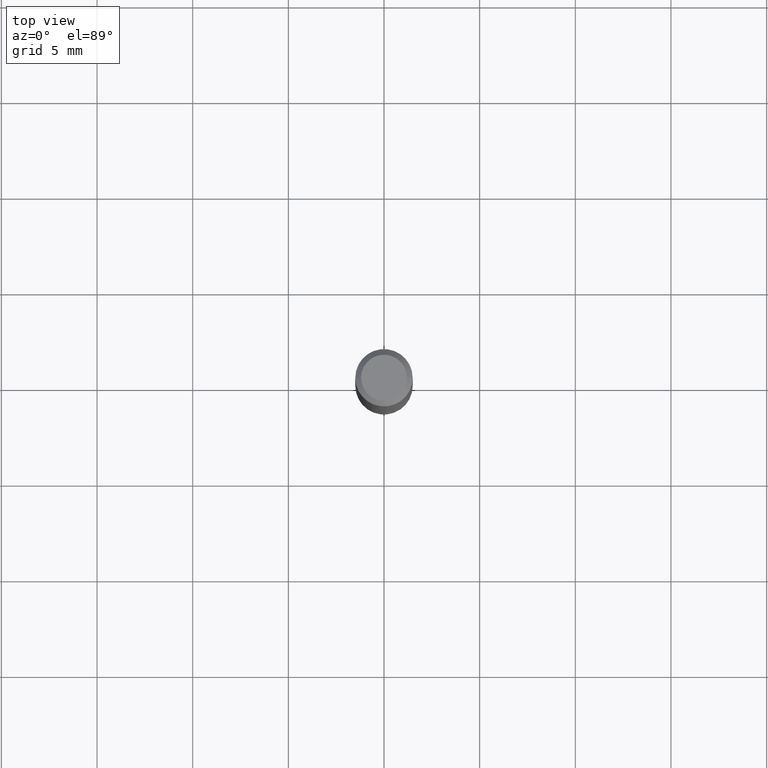
[diagram: clean part render]
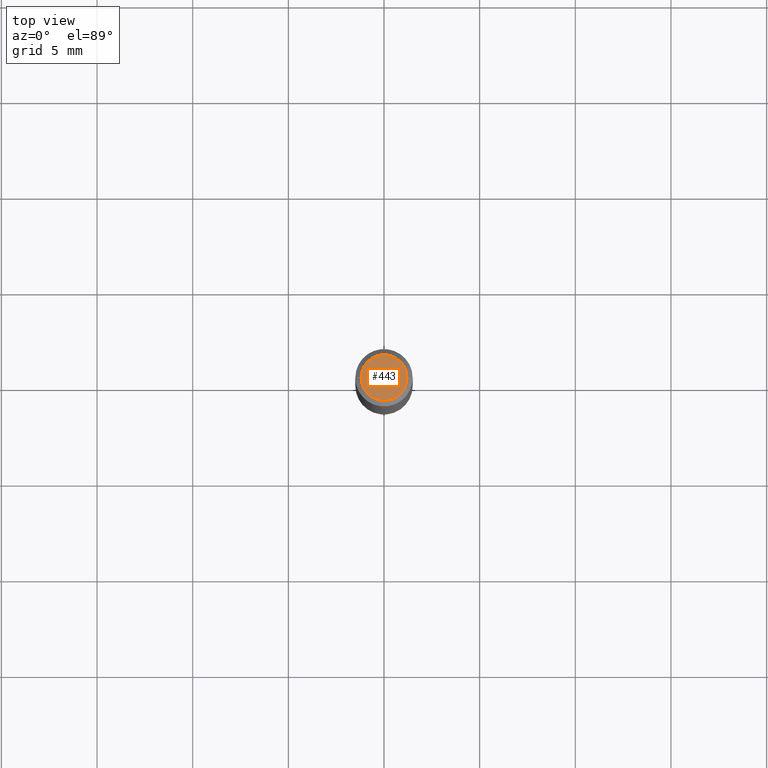
[diagram: same view with one face highlighted and labeled with its STEP entity id]
A machine part, top view. The second image highlights one B-rep face of the part: STEP entity #443.
In plain terms, the highlighted planar face has unit normal (0, -0, -1).
Its self-contained STEP definition (entity closure, byte-faithful):
#31 = VERTEX_POINT ( 'NONE', #435 ) ;
#47 = DIRECTION ( 'NONE',  ( 1.000000000000000000, -6.982962677686266711E-15, 4.876185090822587894E-29 ) ) ;
#56 = CIRCLE ( 'NONE', #98, 0.04724000000000000421 ) ;
#57 = CARTESIAN_POINT ( 'NONE',  ( 8.265746106709734507E-48, -1.180129479067563789E-33, -3.380025165646692144E-19 ) ) ;
#59 = DIRECTION ( 'NONE',  ( -2.445468806185136597E-29, 3.491481338843145583E-15, 1.000000000000000000 ) ) ;
#71 = CIRCLE ( 'NONE', #470, 0.04724000000000000421 ) ;
#78 = ORIENTED_EDGE ( 'NONE', *, *, #157, .T. ) ;
#98 = AXIS2_PLACEMENT_3D ( 'NONE', #402, #59, #47 ) ;
#113 = DIRECTION ( 'NONE',  ( -1.000000000000000000, 6.982962677686265922E-15, -4.876176775795935793E-29 ) ) ;
#157 = EDGE_CURVE ( 'NONE', #332, #31, #56, .T. ) ;
#213 = DIRECTION ( 'NONE',  ( 1.000000000000000000, -6.982962677686266711E-15, 4.876185090822587894E-29 ) ) ;
#221 = DIRECTION ( 'NONE',  ( 2.438088387897960049E-29, -3.491481338843145188E-15, -1.000000000000000000 ) ) ;
#264 = PLANE ( 'NONE',  #432 ) ;
#265 = CARTESIAN_POINT ( 'NONE',  ( 4.132873053354867254E-48, -5.900647395337818946E-34, -1.690012582823346072E-19 ) ) ;
#332 = VERTEX_POINT ( 'NONE', #455 ) ;
#372 = EDGE_LOOP ( 'NONE', ( #78, #441 ) ) ;
#373 = FACE_OUTER_BOUND ( 'NONE', #372, .T. ) ;
#387 = EDGE_CURVE ( 'NONE', #31, #332, #71, .T. ) ;
#402 = CARTESIAN_POINT ( 'NONE',  ( 8.265746106709734507E-48, -1.180129479067563789E-33, -3.380025165646692144E-19 ) ) ;
#432 = AXIS2_PLACEMENT_3D ( 'NONE', #265, #221, #113 ) ;
#435 = CARTESIAN_POINT ( 'NONE',  ( 0.04724000000000000421, -3.852183633974369345E-16, -3.380025165621689721E-19 ) ) ;
#441 = ORIENTED_EDGE ( 'NONE', *, *, #387, .T. ) ;
#443 = ADVANCED_FACE ( 'NONE', ( #373 ), #264, .F. ) ;
#455 = CARTESIAN_POINT ( 'NONE',  ( -0.04724000000000000421, 3.504923541997677355E-16, -3.380025165670481712E-19 ) ) ;
#470 = AXIS2_PLACEMENT_3D ( 'NONE', #57, #479, #213 ) ;
#479 = DIRECTION ( 'NONE',  ( -2.445468806185136597E-29, 3.491481338843145583E-15, 1.000000000000000000 ) ) ;